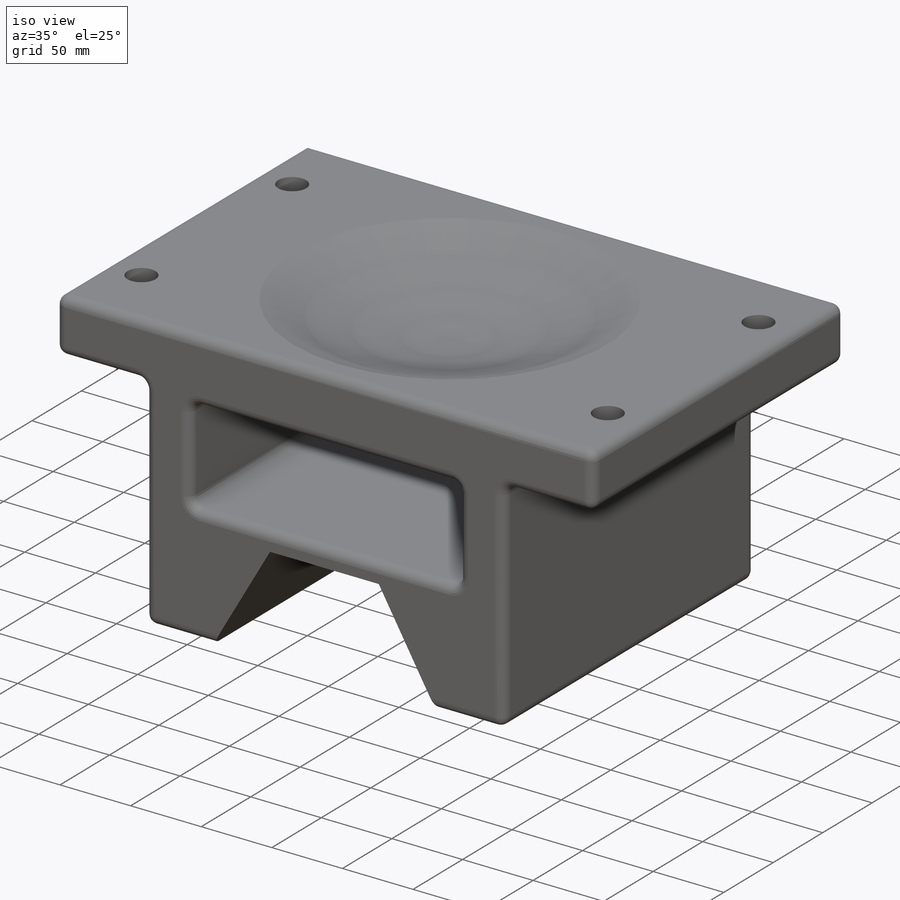
[diagram: iso view]
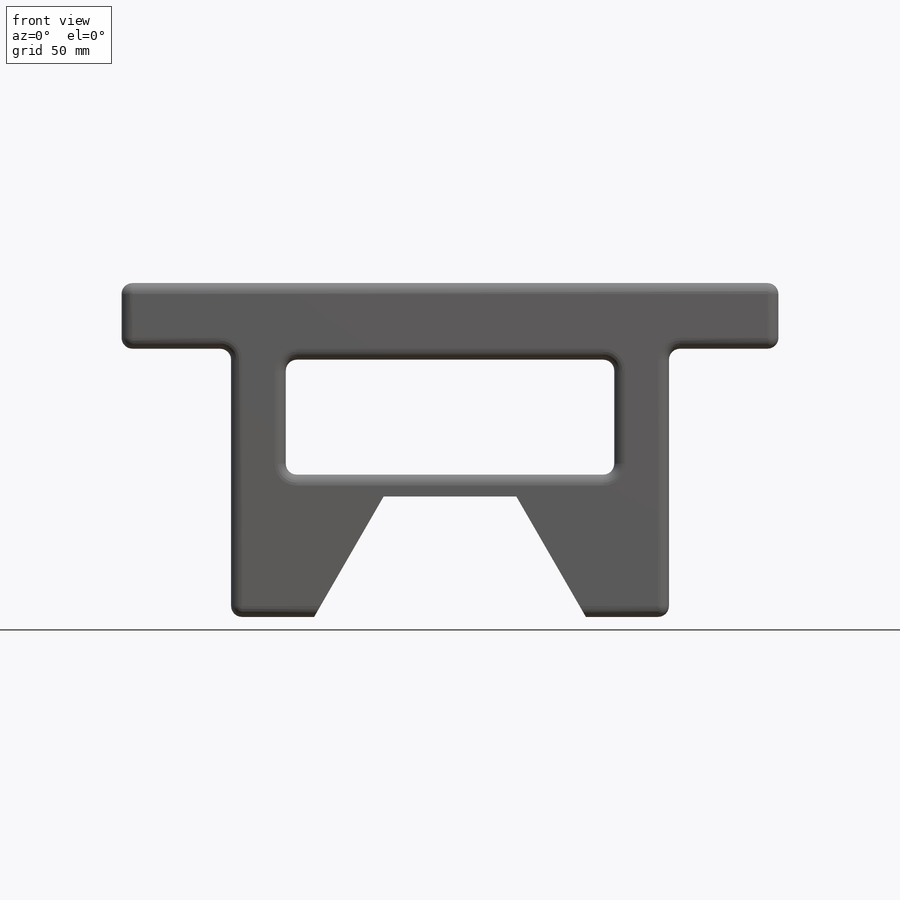
[diagram: front view]
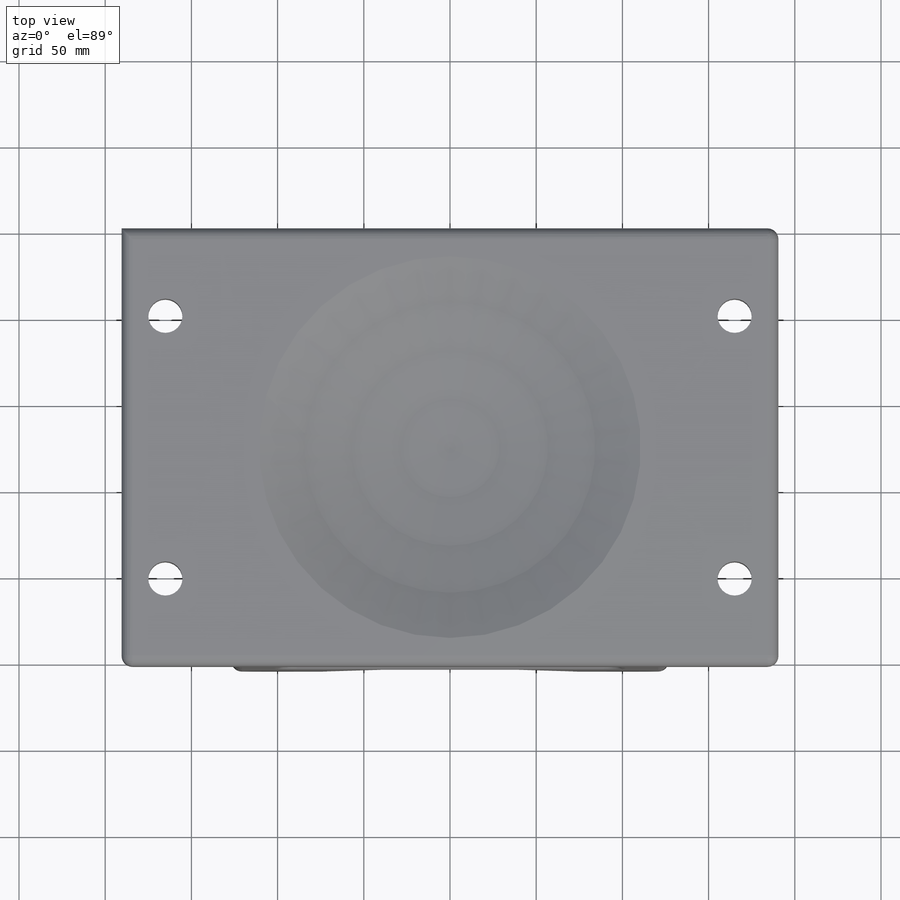
[diagram: top view]
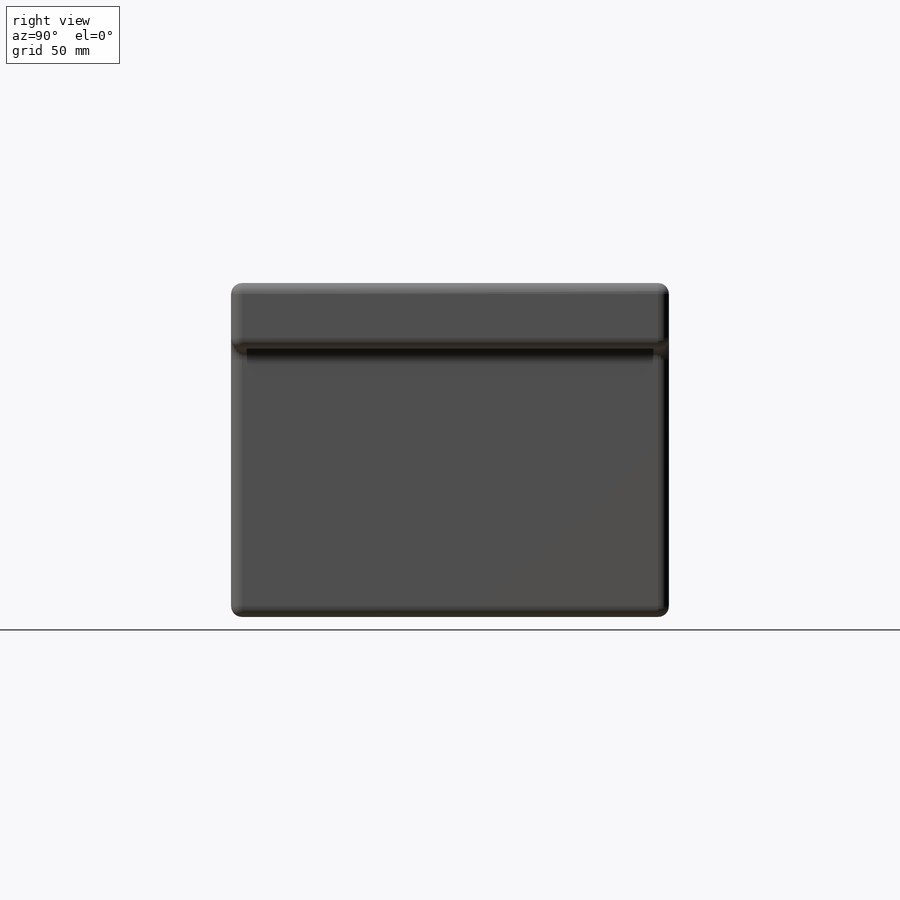
[diagram: right view]
SOLIDWORKS PART (.sldprt)
format: sldprt  version: not decoded by parser v0  size: 430,080 bytes
history: native  units: mm
features: sketch x8, plane x4, thread x4, cut_extrude x2, fillet x2, material x1, extrude x1, cut_revolve x1, hole x1 (+11 scaffold rows collapsed)
feature tree (35):
  scaffold x11  (default folders/planes/origin — collapsed)
  material  "A356-T6"
  plane  "Plane1"
  plane  "Plane2"
  plane  "Plane3"
  sketch  "Sketch1"  dims[D1=3.175mm D2=196.85mm D3=38.1mm D4=73.025mm D5=120.0deg D6=69.85mm D7=381.0mm D8=254.0mm]
  extrude  "Base-Extrude"  Depth=254mm
  sketch  "Sketch2"  dims[D5=19.8374mm D1=50.8mm D2=50.8mm D3=25.4mm D4=25.4mm]
  cut_extrude  "Cut-Extrude1"  [1 undecoded]
  sketch  "3/4-18 SKETCH"  dims[D5=19.05mm D1=50.8mm D2=50.8mm D3=23.876mm D4=23.876mm]
  sketch  "Sketch5"  dims[D3=254.0mm D1=127.0mm D2=25.4mm]
  cut_revolve  "Cut-Revolve1"  Angle=360deg
  fillet  "Fillet1"  Radius=6.35mm
  sketch  "Sketch6"  dims[c1.D1=15.875mm c1.D2=31.75mm c1.D3=31.75mm c1.D4=6.35mm c2.D1=82.55mm c2.D4=66.675mm]
  cut_extrude  "Cut-Extrude3"  [1 undecoded]
  fillet  "Fillet2"  Radius=6.35mm
  sketch  "Sketch7"
  plane  "Plane4"
  hole  "Tapped Hole for 3/4-16 Helicoil1"  Diameter=19.44624mm Depth=38.3032mm
  sketch  "Sketch9"  dims[D1=76.2mm D2=76.2mm]
  sketch  "Sketch8"  dims[hole-wizard template sketch: 46 standard entries collapsed; hole parameters kept: c15.Tap Drill Dia.=~19.44624mm c15.Tap Drill Depth=38.3032mm c15.D3=~14.816244mm c15.Drill Angle=118.0deg]
  thread  "Hole Thread5"  Diameter=31.1912mm  [1 undecoded]
  thread  "Hole Thread6"  Diameter=31.1912mm  [1 undecoded]
  thread  "Hole Thread7"  Diameter=31.1912mm  [1 undecoded]
  thread  "Hole Thread8"  Diameter=31.1912mm  [1 undecoded]
decode coverage: 16 of 19 modeling features carry decoded parameters
note: ~ marks probable driven/reference dimensions
note: 6 parameter values undecoded
note: suppression state not decoded; provenance and decode notes live in map.json
